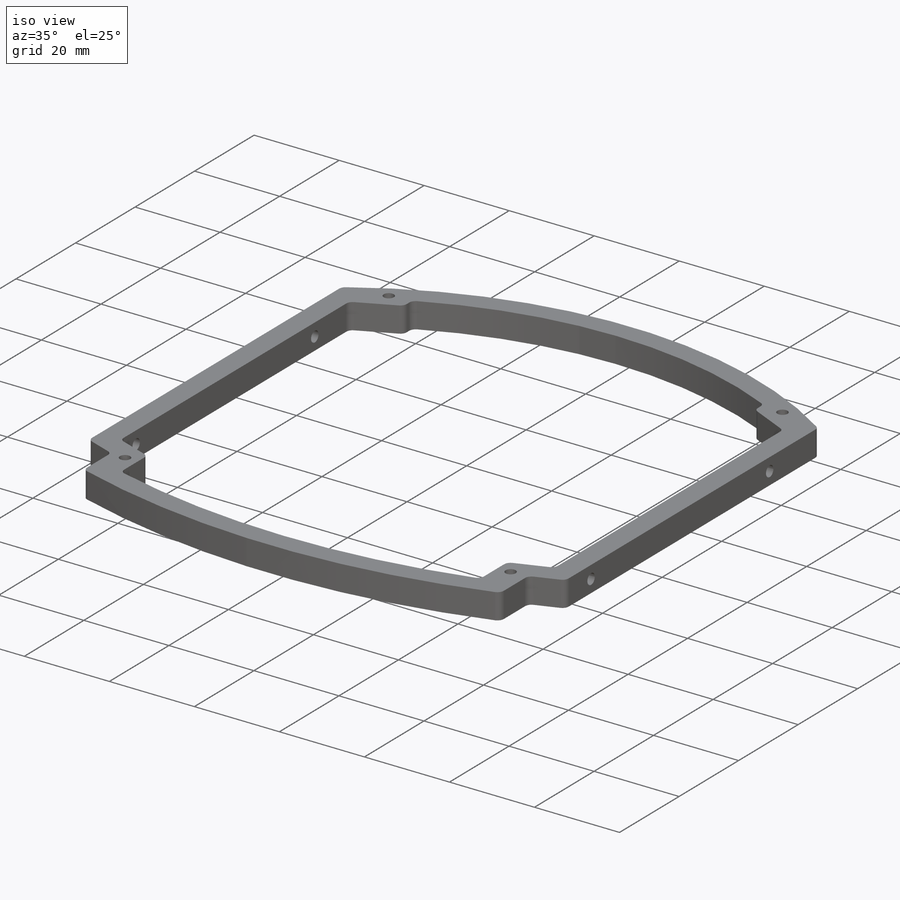
[diagram: iso view]
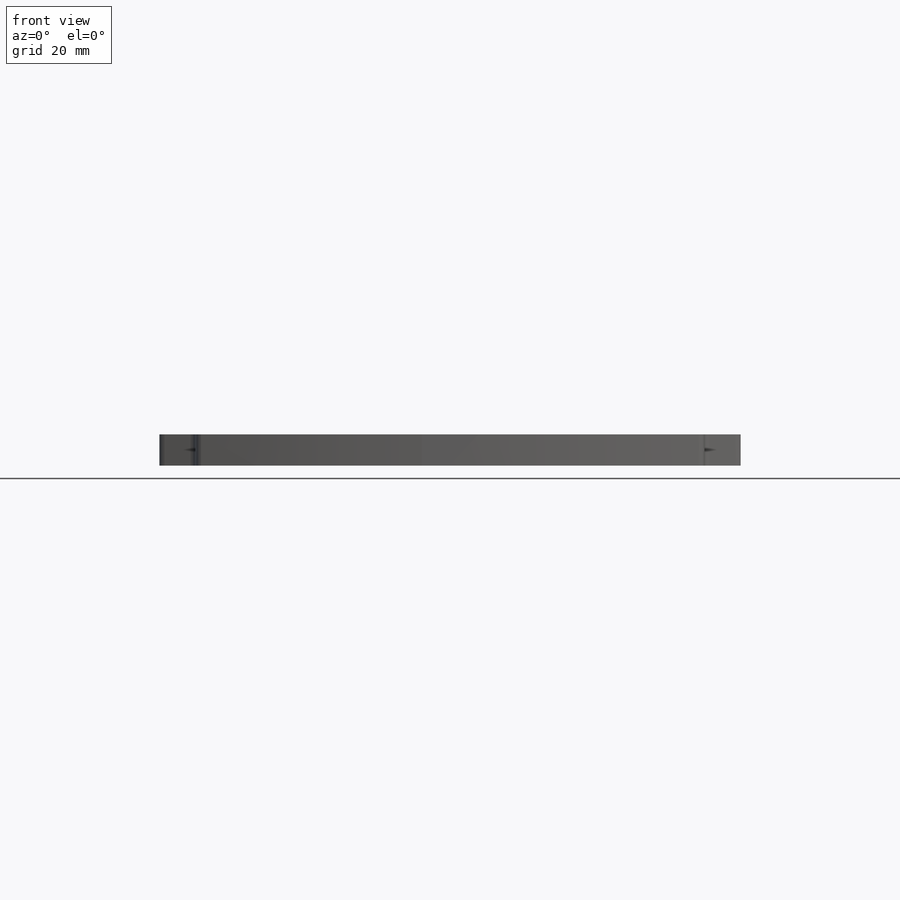
[diagram: front view]
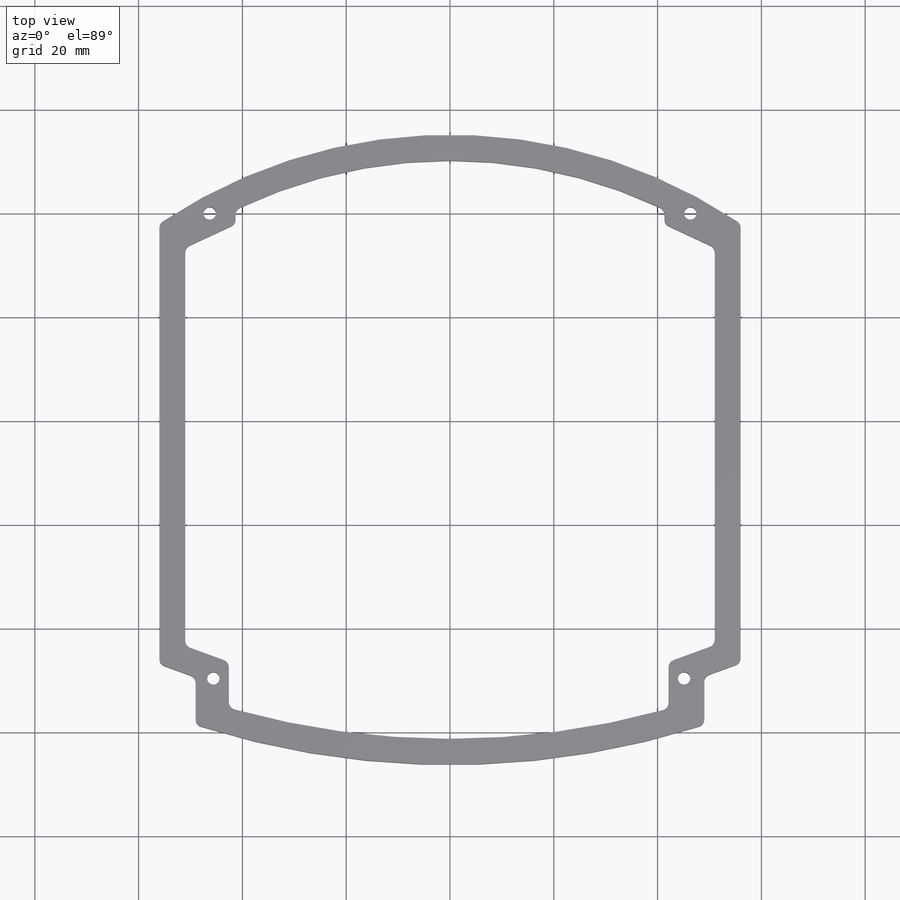
[diagram: top view]
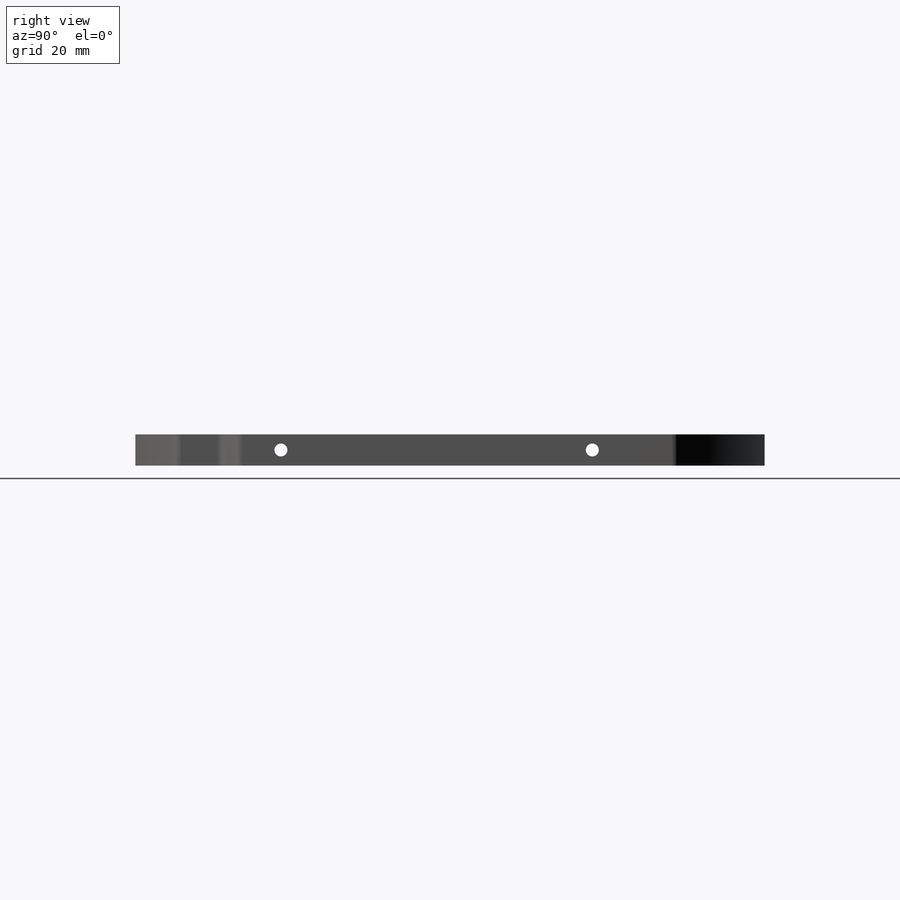
[diagram: right view]
SOLIDWORKS PART (.sldprt)
format: sldprt  version: not decoded by parser v0  size: 2,629,120 bytes
history: native  units: mm
features: sketch x3, material x1, extrude x1, hole x1, mirror x1, fillet x1 (+11 scaffold rows collapsed)
feature tree (19):
  scaffold x11  (default folders/planes/origin — collapsed)
  material  "Material <not specified>"
  sketch  "Sketch1"  dims[c1.D1=120.0mm c1.D11=200.0mm c1.D7=200.0mm c1.D9=2.4mm c2.D7=200.0mm c2.D19=195.0mm c2.D36=~115.557587mm c3.D7=100.0mm c3.D11=100.0mm c4.D7=160.0mm c4.D19=150.0mm c4.D5=150.0mm c4.D2=109.0mm c4.D3=92.0mm c5.D5=50.0mm c5.D6=52.0mm c5.D4=2.0mm c5.D7=2.0mm c5.D8=10.0mm c5.D9=5.0mm c5.D2=112.0mm c5.D3=56.0mm c6.D4=97.0mm c6.D5=48.5mm c6.D7=5.0mm c6.D8=~85.190711mm c6.D6=100.0mm c7.D8=50.0mm c7.D9=100.0mm c7.D10=4.4mm c7.D12=5.4mm c7.D13=3.7mm c7.D14=5.0mm c7.D15=3.7mm c7.D16=5.0mm c7.D17=5.4mm c7.D18=4.9mm c7.D7=5.0mm c7.D19=140.0mm c7.D20=4.0mm c7.D21=3.0mm c7.D22=~5.12563mm c8.D22=110.0deg c8.D23=3.0mm c8.D24=4.0mm c8.D25=~5.037401mm c9.D25=110.0deg c9.D26=4.0mm c9.D27=5.0mm c9.D28=2.1494mm c10.D28=115.0deg c10.D29=5.0mm c10.D30=4.0mm c10.D31=~2.629336mm c11.D31=115.0deg c11.D32=57.0mm c11.D33=70.0mm c11.D34=3.0mm c11.D35=3.0mm c11.D36=5.0mm c11.D37=40.0mm c11.D7=82.15mm c12.D7=~0.323113deg c13.D7=6.0mm c13.D11=52.0mm c13.D19=5.0mm c13.D4=5.0mm c13.D33=5.0mm c13.D5=95.0mm c13.D32=38.0mm c13.D34=38.0mm c14.D32=40.0mm c14.D34=2.0mm c14.D5=7.0mm c14.D35=7.0mm c14.D37=5.0mm c14.D38=5.0mm c14.D39=9.0mm c14.D40=112.0mm c14.D41=~92.613412mm c15.D41=~0.16553deg c16.D41=~89.450641mm c17.D41=~0.572313deg c18.D41=~89.718206mm c19.D41=~0.566368deg c20.D41=~90.756922mm c21.D41=~0.138977deg c22.D41=~90.756922mm c23.D41=~0.138977deg c24.D41=~92.603863mm c25.D41=~179.94429deg c26.D41=~90.802299mm c27.D41=~0.043908deg c28.D41=~89.644147mm c29.D41=~0.739932deg c30.D41=~89.664602mm c31.D41=~0.41139deg c32.D41=~89.666914mm c32.D37=~40.247463deg c32.D4=6.0mm c32.D10=6.0mm c33.D4=6.0mm]
  extrude  "Boss-Extrude1"  Depth=6mm
  hole  "Tap Drill for M3 Tap1"  Diameter=2.5mm Depth=10mm
  sketch  "Sketch3"  dims[D1=3.0mm D2=3.0mm D3=60.0mm D4=18.0mm]
  sketch  "Sketch2"  dims[hole-wizard template sketch: 50 standard entries collapsed; hole parameters above]
  mirror  "Mirror1"
  fillet  "Fillet1"  Radius=1.5mm
decode coverage: 6 of 7 modeling features carry decoded parameters
note: ~ marks probable driven/reference dimensions
note: suppression state not decoded; provenance and decode notes live in map.json
